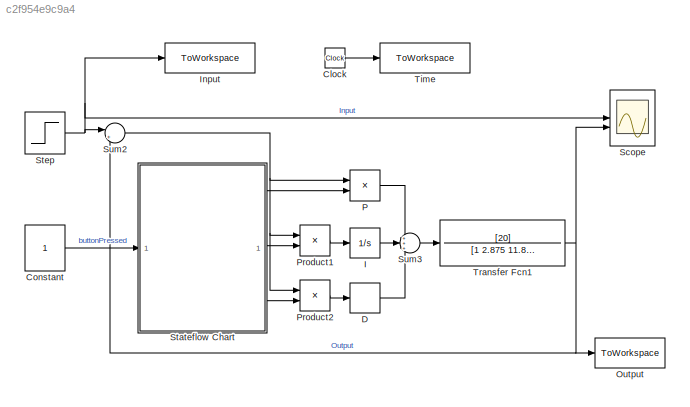
MODEL slx_c2f954e9c9a4
KIND model
CONFIG AbsTol = auto
CONFIG EnableMultiTasking = off
CONFIG FixedStep = auto
CONFIG MaxStep = auto
CONFIG MinStep = auto
CONFIG RelTol = 1e-3
CONFIG SampleTimeConstraint = Unconstrained
CONFIG SolverName = VariableStepAuto
CONFIG StartTime = 0.0
CONFIG StopTime = 5
BLOCK [Clock] Clock
BLOCK [Constant] Constant
BLOCK [Derivative] D
BLOCK [Integrator] I
BLOCK [ToWorkspace] Input
  FixptAsFi = on
  MaxDataPoints = inf
  SampleTime = -1
  SaveFormat = Timeseries
  VariableName = input
BLOCK [ToWorkspace] Output
  FixptAsFi = on
  MaxDataPoints = inf
  SampleTime = -1
  SaveFormat = Timeseries
  VariableName = output
BLOCK [Product] P
BLOCK [Product] Product1
BLOCK [Product] Product2
BLOCK [Scope] Scope
  Floating = off
  NumInputPorts = 2
  ScopeSpecificationString = Simulink.scopes.TimeScopeBlockCfg('CurrentConfiguration', extmgr.ConfigurationSet(extmgr.Configuration('Core','General UI',true,'FigureColor',[1 1 1]),extmgr.Configuration('Core','Source UI',true),extmgr.Configuration('Sources','WiredSimulink',true),extmgr.Configuration('Visuals','Time Domain',true,'SerializedDisplays',{struct('MinYLimReal','-0.125','MaxYLimReal','1.125','YLabelReal','','MinYLimMa...<+1800ch>
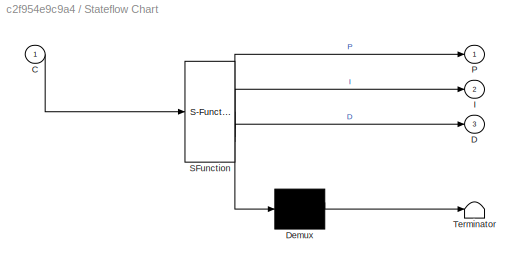
BLOCK [SubSystem] Stateflow Chart
  ErrorFcn = Stateflow.Translate.translate
  PermitHierarchicalResolution = ExplicitOnly
  SFBlockType = Chart
  TreatAsAtomicUnit = on
BLOCK [Demux] Stateflow Chart/ Demux 
  Outputs = 1
BLOCK [S-Function] Stateflow Chart/ SFunction 
  EnableBusSupport = on
  FunctionName = sf_sfun
  PortCounts = [1 4]
  SFcnIsStateOwnerBlock = off
  SFunctionDeploymentMode = off
  Tag = Stateflow S-Function 3
BLOCK [Terminator] Stateflow Chart/ Terminator 
BLOCK [Inport] Stateflow Chart/C
BLOCK [Outport] Stateflow Chart/D
  Port = 3
BLOCK [Outport] Stateflow Chart/I
  Port = 2
BLOCK [Outport] Stateflow Chart/P
BLOCK [Step] Step
  SampleTime = 0
  Time = 0.0001
BLOCK [Sum] Sum2
  Inputs = |+-
BLOCK [Sum] Sum3
  Inputs = +++
BLOCK [ToWorkspace] Time
  FixptAsFi = on
  MaxDataPoints = inf
  SampleTime = -1
  SaveFormat = Timeseries
  VariableName = time
BLOCK [TransferFcn] Transfer Fcn1
  Denominator = [1 2.875 11.87]
  Numerator = [20]
LINE Clock:1 -> Time:1
LINE Constant:1 -> Stateflow Chart:1
LINE D:1 -> Sum3:3
LINE I:1 -> Sum3:2
LINE P:1 -> Sum3:1
LINE Product1:1 -> I:1
LINE Product2:1 -> D:1
LINE Stateflow Chart:1 -> P:2
LINE Stateflow Chart:2 -> Product1:2
LINE Stateflow Chart:3 -> Product2:2
NET Step:1 -> Input:1, Scope:1, Sum2:1
NET Sum2:1 -> P:1, Product1:1, Product2:1
LINE Sum3:1 -> Transfer Fcn1:1
NET Transfer Fcn1:1 -> Output:1, Scope:2, Sum2:2
note: NET lines group one-source signal fan-out (src -> all destinations, sorted); 1:1 wires keep LINE
CHART Stateflow Chart states=2 transitions=3
  STATE_LABEL 'PID1\nduring:\nP = P1;\nI = I1;\nD = D1;'
  STATE_LABEL 'PID2\nduring:\nP = P2;\nI = I2;\nD = D2;'
CHART  states=0 transitions=0
